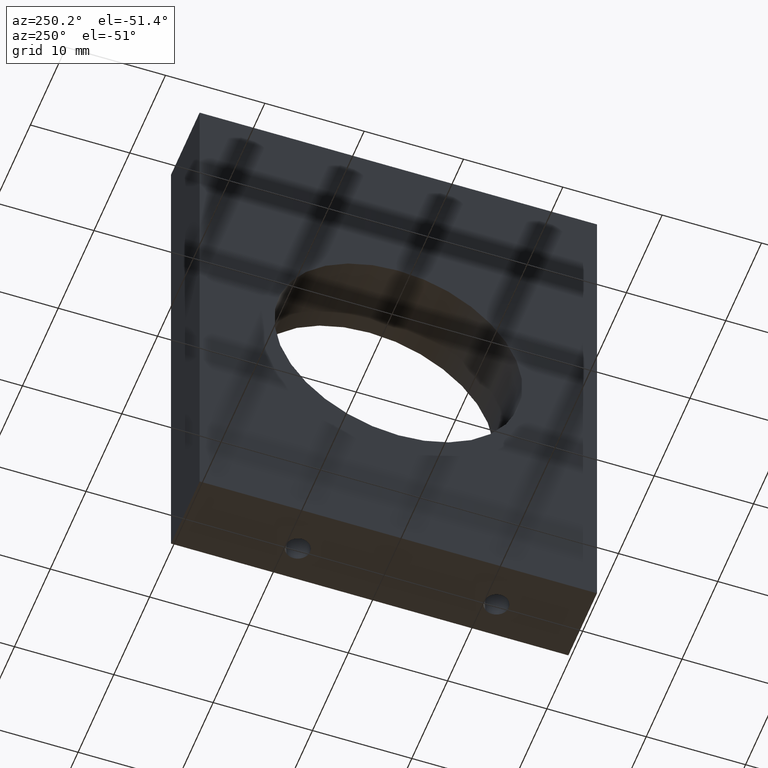
[diagram: clean part render]
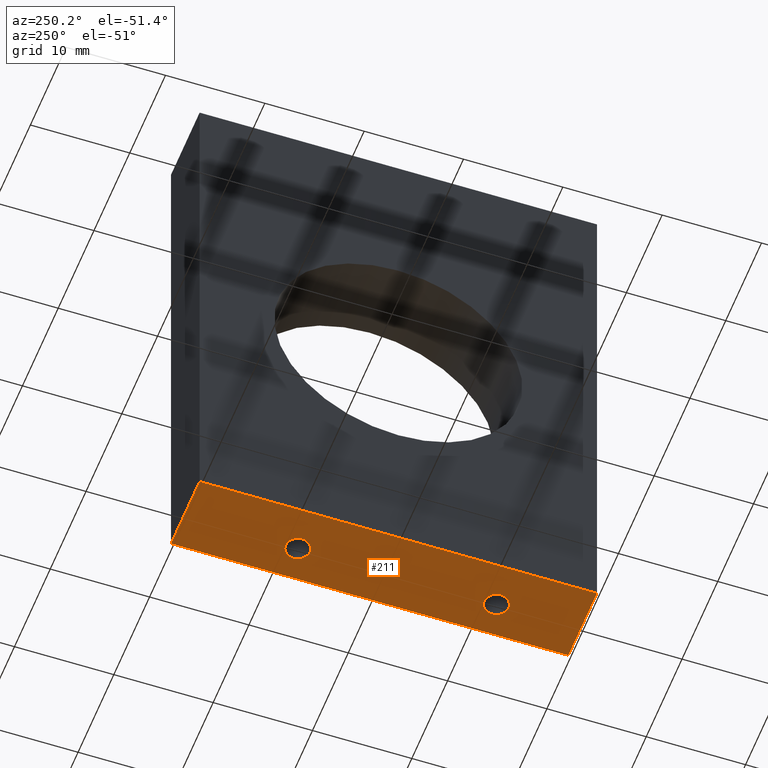
[diagram: same view with one face highlighted and labeled with its STEP entity id]
A machine part, auxiliary view. The second image highlights one B-rep face of the part: STEP entity #211.
In plain terms, the highlighted planar face has unit normal (0, 0, -1).
Its self-contained STEP definition (entity closure, byte-faithful):
#21=FACE_BOUND('',#78,.T.);
#22=FACE_BOUND('',#79,.T.);
#36=CIRCLE('',#235,1.2295);
#38=CIRCLE('',#239,1.2295);
#56=FACE_OUTER_BOUND('',#77,.T.);
#77=EDGE_LOOP('',(#173,#174,#175,#176));
#78=EDGE_LOOP('',(#177));
#79=EDGE_LOOP('',(#178));
#88=LINE('',#320,#100);
#92=LINE('',#356,#104);
#93=LINE('',#359,#105);
#94=LINE('',#360,#106);
#100=VECTOR('',#254,10.);
#104=VECTOR('',#298,10.);
#105=VECTOR('',#301,10.);
#106=VECTOR('',#302,10.);
#112=VERTEX_POINT('',#317);
#113=VERTEX_POINT('',#319);
#119=VERTEX_POINT('',#338);
#121=VERTEX_POINT('',#344);
#124=VERTEX_POINT('',#352);
#126=VERTEX_POINT('',#358);
#130=EDGE_CURVE('',#112,#113,#88,.T.);
#137=EDGE_CURVE('',#119,#119,#36,.T.);
#139=EDGE_CURVE('',#121,#121,#38,.T.);
#144=EDGE_CURVE('',#124,#113,#92,.T.);
#145=EDGE_CURVE('',#126,#124,#93,.T.);
#146=EDGE_CURVE('',#126,#112,#94,.T.);
#173=ORIENTED_EDGE('',*,*,#145,.T.);
#174=ORIENTED_EDGE('',*,*,#144,.T.);
#175=ORIENTED_EDGE('',*,*,#130,.F.);
#176=ORIENTED_EDGE('',*,*,#146,.F.);
#177=ORIENTED_EDGE('',*,*,#137,.T.);
#178=ORIENTED_EDGE('',*,*,#139,.T.);
#196=PLANE('',#244);
#211=ADVANCED_FACE('',(#56,#21,#22),#196,.T.);
#235=AXIS2_PLACEMENT_3D('',#339,#278,#279);
#239=AXIS2_PLACEMENT_3D('',#345,#286,#287);
#244=AXIS2_PLACEMENT_3D('',#357,#299,#300);
#254=DIRECTION('',(-1.,0.,0.));
#278=DIRECTION('center_axis',(0.,0.,1.));
#279=DIRECTION('ref_axis',(-1.,0.,0.));
#286=DIRECTION('center_axis',(0.,0.,1.));
#287=DIRECTION('ref_axis',(-1.,0.,0.));
#298=DIRECTION('',(0.,1.,0.));
#299=DIRECTION('center_axis',(0.,0.,-1.));
#300=DIRECTION('ref_axis',(-1.,0.,0.));
#301=DIRECTION('',(-1.,0.,0.));
#302=DIRECTION('',(0.,1.,0.));
#317=CARTESIAN_POINT('',(4.,40.,-28.));
#319=CARTESIAN_POINT('',(-4.00000000000001,40.,-28.));
#320=CARTESIAN_POINT('',(4.,40.,-28.));
#338=CARTESIAN_POINT('',(-0.729500000000005,28.5,-28.));
#339=CARTESIAN_POINT('Origin',(0.499999999999995,28.5,-28.));
#344=CARTESIAN_POINT('',(-0.729500000000007,8.5,-28.));
#345=CARTESIAN_POINT('Origin',(0.499999999999993,8.5,-28.));
#352=CARTESIAN_POINT('',(-4.00000000000001,0.,-28.));
#356=CARTESIAN_POINT('',(-4.00000000000001,0.,-28.));
#357=CARTESIAN_POINT('Origin',(4.,0.,-28.));
#358=CARTESIAN_POINT('',(4.,0.,-28.));
#359=CARTESIAN_POINT('',(4.,0.,-28.));
#360=CARTESIAN_POINT('',(4.,0.,-28.));